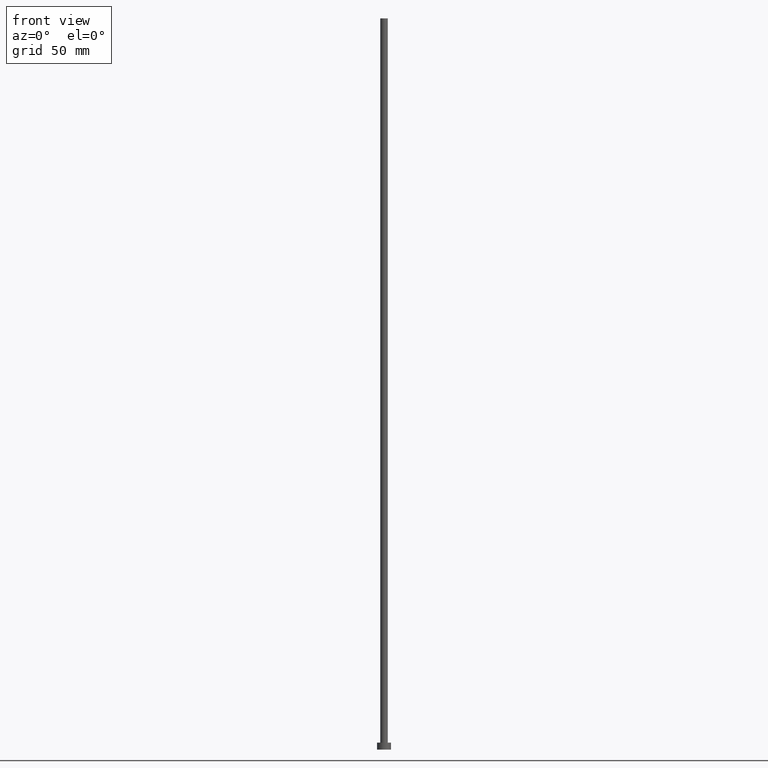
[diagram: clean part render]
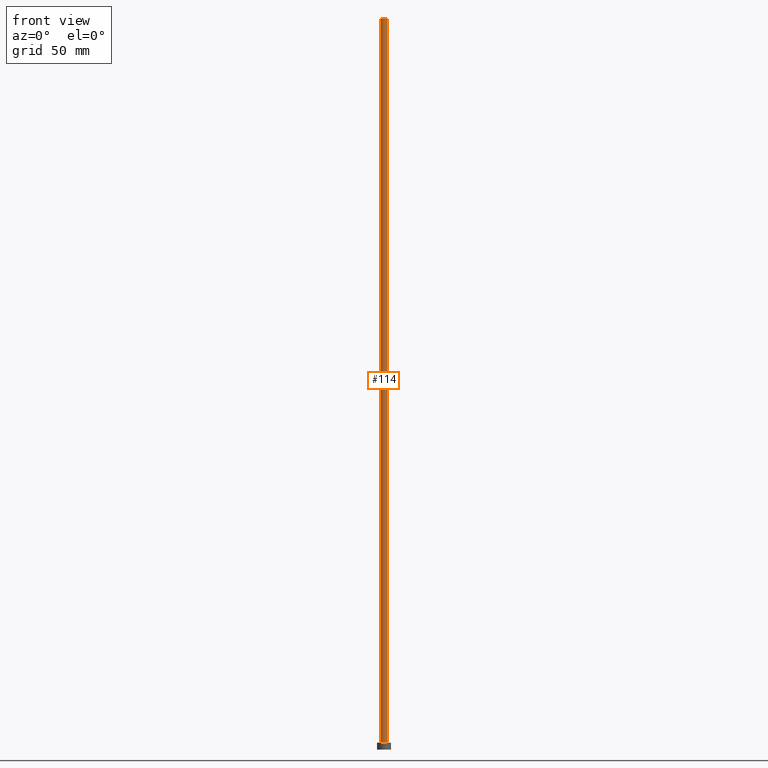
[diagram: same view with one face highlighted and labeled with its STEP entity id]
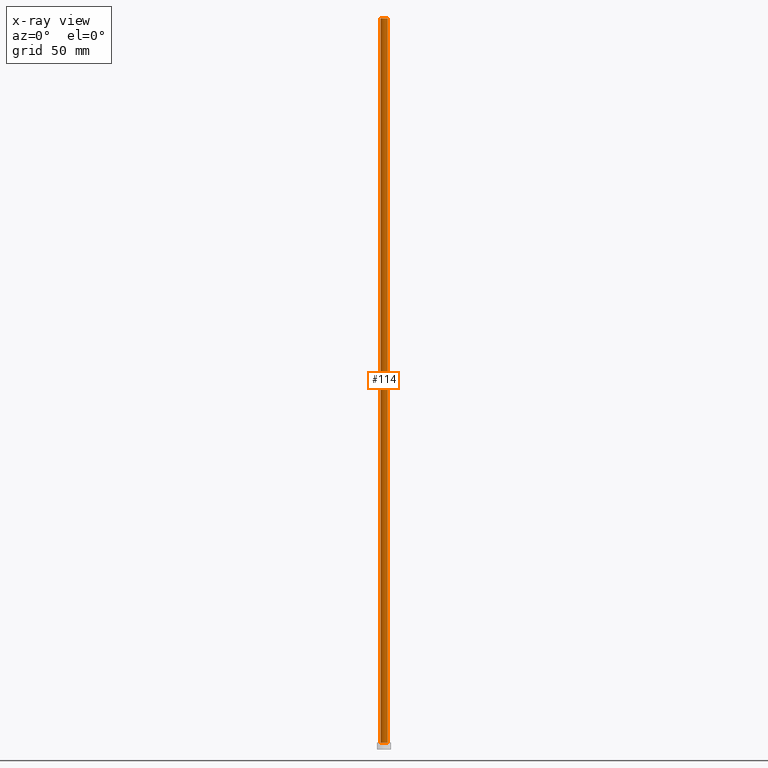
[diagram: x-ray of the same camera — body ghosted, the highlighted face saturated]
A machine part, front view. The second image highlights one B-rep face of the part: STEP entity #114.
The next image is the same camera in x-ray: the body ghosted, the highlighted face saturated — about 0% of this face is hidden behind the body in this view.
In plain terms, the highlighted cylindrical surface (edge-blend (fillet) strip) has radius 1.6 mm, axis along (-0, -0, -1).
Its self-contained STEP definition (entity closure, byte-faithful):
#9 = CIRCLE ( 'NONE', #51, 1.600000000000000089 ) ;
#11 = DIRECTION ( 'NONE',  ( 0.000000000000000000, 0.000000000000000000, 1.000000000000000000 ) ) ;
#19 = CARTESIAN_POINT ( 'NONE',  ( 1.600000000000000089, 1.959434878635765230E-16, 315.0000000000000000 ) ) ;
#32 = ORIENTED_EDGE ( 'NONE', *, *, #175, .F. ) ;
#36 = DIRECTION ( 'NONE',  ( 0.000000000000000000, 0.000000000000000000, 1.000000000000000000 ) ) ;
#51 = AXIS2_PLACEMENT_3D ( 'NONE', #188, #36, #231 ) ;
#53 = ORIENTED_EDGE ( 'NONE', *, *, #252, .T. ) ;
#54 = VERTEX_POINT ( 'NONE', #150 ) ;
#57 = EDGE_CURVE ( 'NONE', #54, #160, #234, .T. ) ;
#66 = VECTOR ( 'NONE', #98, 1000.000000000000000 ) ;
#69 = AXIS2_PLACEMENT_3D ( 'NONE', #254, #79, #117 ) ;
#74 = CARTESIAN_POINT ( 'NONE',  ( 0.000000000000000000, 0.000000000000000000, 315.0000000000000000 ) ) ;
#79 = DIRECTION ( 'NONE',  ( -0.000000000000000000, -0.000000000000000000, -1.000000000000000000 ) ) ;
#82 = VECTOR ( 'NONE', #95, 1000.000000000000000 ) ;
#90 = DIRECTION ( 'NONE',  ( 1.000000000000000000, 0.000000000000000000, 0.000000000000000000 ) ) ;
#95 = DIRECTION ( 'NONE',  ( -0.000000000000000000, -0.000000000000000000, -1.000000000000000000 ) ) ;
#96 = EDGE_CURVE ( 'NONE', #54, #131, #112, .T. ) ;
#98 = DIRECTION ( 'NONE',  ( -0.000000000000000000, -0.000000000000000000, -1.000000000000000000 ) ) ;
#112 = LINE ( 'NONE', #132, #82 ) ;
#113 = LINE ( 'NONE', #255, #66 ) ;
#114 = ADVANCED_FACE ( 'NONE', ( #230 ), #251, .T. ) ;
#117 = DIRECTION ( 'NONE',  ( -1.000000000000000000, 0.000000000000000000, 0.000000000000000000 ) ) ;
#125 = AXIS2_PLACEMENT_3D ( 'NONE', #74, #11, #90 ) ;
#126 = EDGE_LOOP ( 'NONE', ( #32, #201, #147, #53 ) ) ;
#131 = VERTEX_POINT ( 'NONE', #208 ) ;
#132 = CARTESIAN_POINT ( 'NONE',  ( -1.600000000000000089, 0.000000000000000000, 315.0000000000000000 ) ) ;
#147 = ORIENTED_EDGE ( 'NONE', *, *, #96, .T. ) ;
#150 = CARTESIAN_POINT ( 'NONE',  ( -1.600000000000000089, 0.000000000000000000, 315.0000000000000000 ) ) ;
#160 = VERTEX_POINT ( 'NONE', #19 ) ;
#175 = EDGE_CURVE ( 'NONE', #160, #182, #113, .T. ) ;
#182 = VERTEX_POINT ( 'NONE', #233 ) ;
#188 = CARTESIAN_POINT ( 'NONE',  ( 0.000000000000000000, 0.000000000000000000, 3.000000000000000000 ) ) ;
#201 = ORIENTED_EDGE ( 'NONE', *, *, #57, .F. ) ;
#208 = CARTESIAN_POINT ( 'NONE',  ( -1.600000000000000089, 0.000000000000000000, 3.000000000000000000 ) ) ;
#230 = FACE_OUTER_BOUND ( 'NONE', #126, .T. ) ;
#231 = DIRECTION ( 'NONE',  ( 1.000000000000000000, 0.000000000000000000, 0.000000000000000000 ) ) ;
#233 = CARTESIAN_POINT ( 'NONE',  ( 1.600000000000000089, 1.959434878635765230E-16, 3.000000000000000000 ) ) ;
#234 = CIRCLE ( 'NONE', #125, 1.600000000000000089 ) ;
#251 = CYLINDRICAL_SURFACE ( 'NONE', #69, 1.600000000000000089 ) ;
#252 = EDGE_CURVE ( 'NONE', #131, #182, #9, .T. ) ;
#254 = CARTESIAN_POINT ( 'NONE',  ( 0.000000000000000000, 0.000000000000000000, 315.0000000000000000 ) ) ;
#255 = CARTESIAN_POINT ( 'NONE',  ( 1.600000000000000089, 1.959434878635765230E-16, 315.0000000000000000 ) ) ;